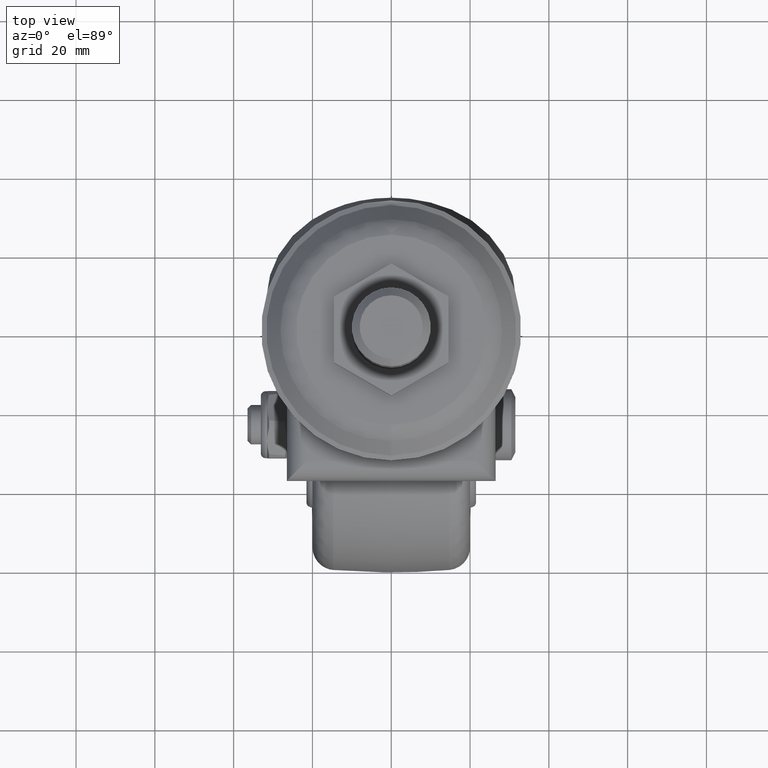
[diagram: clean part render]
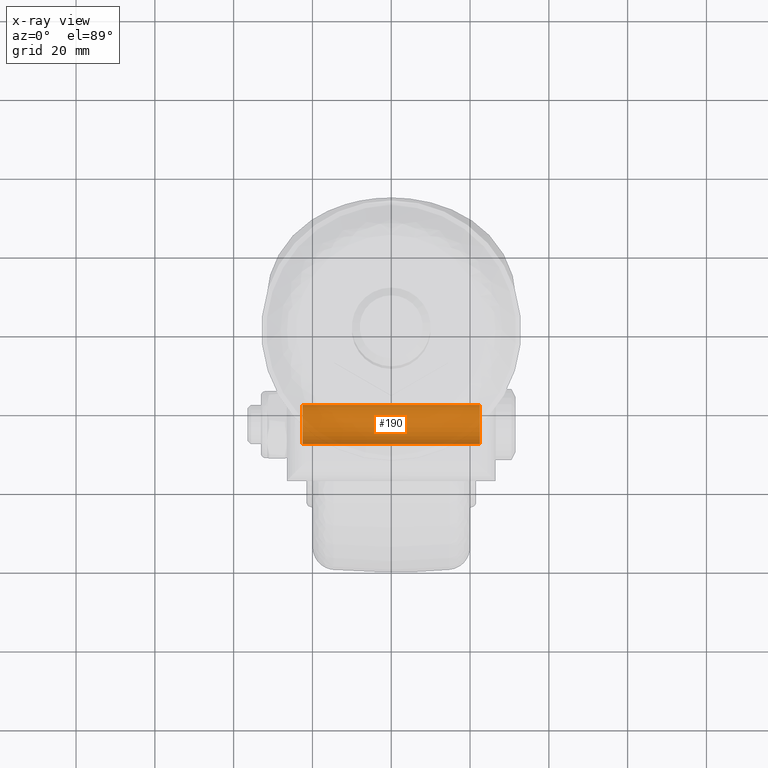
[diagram: x-ray — body ghosted, one internal face saturated and labeled with its STEP entity id]
A machine part, top view, then the same camera in x-ray: the body is ghosted and one INTERNAL B-rep face — a face not visible from any outside direction — is saturated and labeled: STEP entity #190.
In plain terms, the highlighted cylindrical surface (edge-blend (fillet) strip) has radius 5 mm, axis along (-1, 0, -0).
Its self-contained STEP definition (entity closure, byte-faithful):
#190=ADVANCED_FACE('',(#1070),#1069,.T.);
#1069=CYLINDRICAL_SURFACE('',#2534,5.00000000000E+00);
#1070=FACE_OUTER_BOUND('',#2535,.T.);
#2531=CARTESIAN_POINT('',(3.15000000000E+01,-6.25000000000E+01,2.30000000000E+01));
#2532=DIRECTION('',(-1.00000000000E+00,-0.00000000000E+00,-0.00000000000E+00));
#2533=DIRECTION('',(0.00000000000E+00,0.00000000000E+00,1.00000000000E+00));
#2534=AXIS2_PLACEMENT_3D('',#2531,#2532,#2533);
#2535=EDGE_LOOP('',(#3992,#3993,#3994,#3995));
#3992=ORIENTED_EDGE('',*,*,#4420,.F.);
#3993=ORIENTED_EDGE('',*,*,#4551,.T.);
#3994=ORIENTED_EDGE('',*,*,#4502,.F.);
#3995=ORIENTED_EDGE('',*,*,#4552,.F.);
#4420=EDGE_CURVE('',#5184,#5185,#5186,.T.);
#4502=EDGE_CURVE('',#5729,#5730,#5731,.T.);
#4551=EDGE_CURVE('',#5184,#5730,#6045,.T.);
#4552=EDGE_CURVE('',#5185,#5729,#6051,.T.);
#5184=VERTEX_POINT('',#7690);
#5185=VERTEX_POINT('',#7691);
#5186=CIRCLE('',#7695,5.00000000000E+00);
#5729=VERTEX_POINT('',#8099);
#5730=VERTEX_POINT('',#8100);
#5731=CIRCLE('',#8104,5.00000000000E+00);
#6045=(BOUNDED_CURVE() B_SPLINE_CURVE(1,(#8287,#8288),.UNSPECIFIED.,.F.,.F.) B_SPLINE_CURVE_WITH_KNOTS((2,2),(8.33333335810E-02,9.16666666255E-01),.UNSPECIFIED.) CURVE() GEOMETRIC_REPRESENTATION_ITEM() RATIONAL_B_SPLINE_CURVE((1.00000000000E+00,1.00000000000E+00)) REPRESENTATION_ITEM('') );
#6051=(BOUNDED_CURVE() B_SPLINE_CURVE(1,(#8289,#8290),.UNSPECIFIED.,.F.,.F.) B_SPLINE_CURVE_WITH_KNOTS((2,2),(8.33333333333E-02,9.16666666667E-01),.UNSPECIFIED.) CURVE() GEOMETRIC_REPRESENTATION_ITEM() RATIONAL_B_SPLINE_CURVE((7.50000000000E-01,7.50000000000E-01)) REPRESENTATION_ITEM('') );
#7690=CARTESIAN_POINT('',(2.25000000000E+01,-6.25000000000E+01,2.80000000000E+01));
#7691=CARTESIAN_POINT('',(2.25000000000E+01,-6.25000000000E+01,1.80000000000E+01));
#7692=CARTESIAN_POINT('',(2.25000000000E+01,-6.25000000000E+01,2.30000000000E+01));
#7693=DIRECTION('',(1.00000000000E+00,0.00000000000E+00,-0.00000000000E+00));
#7694=DIRECTION('',(0.00000000000E+00,-1.22460635382E-16,1.00000000000E+00));
#7695=AXIS2_PLACEMENT_3D('',#7692,#7693,#7694);
#8099=CARTESIAN_POINT('',(-2.25000000000E+01,-6.25000000000E+01,1.80000000000E+01));
#8100=CARTESIAN_POINT('',(-2.25000000000E+01,-6.25000000000E+01,2.80000000000E+01));
#8101=CARTESIAN_POINT('',(-2.25000000000E+01,-6.25000000000E+01,2.30000000000E+01));
#8102=DIRECTION('',(-1.00000000000E+00,0.00000000000E+00,-0.00000000000E+00));
#8103=DIRECTION('',(0.00000000000E+00,-1.22460635382E-16,-1.00000000000E+00));
#8104=AXIS2_PLACEMENT_3D('',#8101,#8102,#8103);
#8287=CARTESIAN_POINT('',(2.24999999866E+01,-6.25000000000E+01,2.80000000000E+01));
#8288=CARTESIAN_POINT('',(-2.24999999778E+01,-6.25000000000E+01,2.80000000000E+01));
#8289=CARTESIAN_POINT('',(2.25000000000E+01,-6.25000000000E+01,1.80000000000E+01));
#8290=CARTESIAN_POINT('',(-2.25000000000E+01,-6.25000000000E+01,1.80000000000E+01));